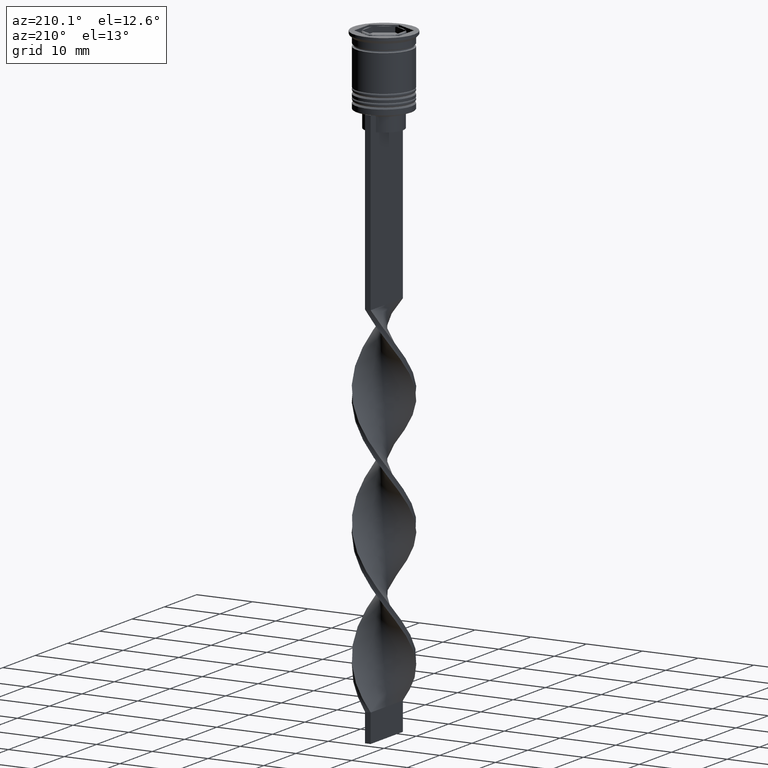
[diagram: clean part render]
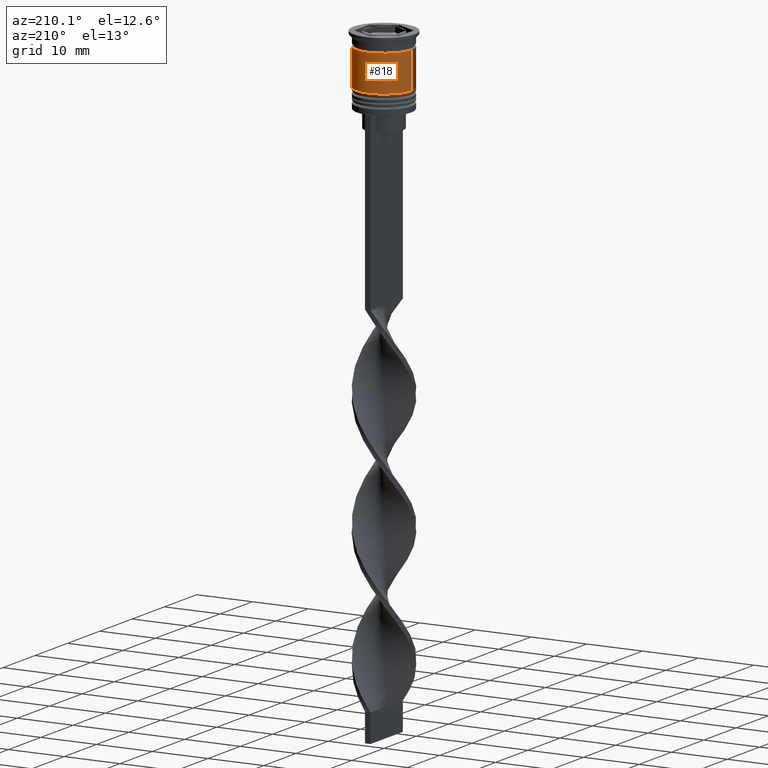
[diagram: same view with one face highlighted and labeled with its STEP entity id]
A machine part, auxiliary view. The second image highlights one B-rep face of the part: STEP entity #818.
In plain terms, the highlighted cylindrical surface (edge-blend (fillet) strip) has radius 5 mm, axis along (-0, -0, 1).
Its self-contained STEP definition (entity closure, byte-faithful):
#49 = DIRECTION ( 'NONE',  ( -0.000000000000000000, -0.000000000000000000, 1.000000000000000000 ) ) ;
#90 = CARTESIAN_POINT ( 'NONE',  ( 5.000000000000000000, 0.000000000000000000, 0.000000000000000000 ) ) ;
#91 = LINE ( 'NONE', #356, #2523 ) ;
#297 = AXIS2_PLACEMENT_3D ( 'NONE', #3252, #49, #680 ) ;
#300 = CIRCLE ( 'NONE', #770, 4.999999999999999112 ) ;
#356 = CARTESIAN_POINT ( 'NONE',  ( -5.000000000000000000, 6.123233995736766282E-16, 0.000000000000000000 ) ) ;
#417 = AXIS2_PLACEMENT_3D ( 'NONE', #3231, #2918, #2957 ) ;
#527 = EDGE_LOOP ( 'NONE', ( #2332, #1537, #2083, #2050 ) ) ;
#655 = DIRECTION ( 'NONE',  ( -0.000000000000000000, -0.000000000000000000, 1.000000000000000000 ) ) ;
#680 = DIRECTION ( 'NONE',  ( 1.000000000000000000, 0.000000000000000000, 0.000000000000000000 ) ) ;
#684 = VERTEX_POINT ( 'NONE', #1416 ) ;
#703 = VERTEX_POINT ( 'NONE', #1125 ) ;
#752 = EDGE_CURVE ( 'NONE', #1600, #684, #2039, .T. ) ;
#770 = AXIS2_PLACEMENT_3D ( 'NONE', #2913, #655, #938 ) ;
#818 = ADVANCED_FACE ( 'NONE', ( #1758 ), #3531, .T. ) ;
#938 = DIRECTION ( 'NONE',  ( 1.000000000000000000, 0.000000000000000000, 0.000000000000000000 ) ) ;
#1046 = CARTESIAN_POINT ( 'NONE',  ( 5.000000000000000888, 0.000000000000000000, -9.000000000000001776 ) ) ;
#1125 = CARTESIAN_POINT ( 'NONE',  ( 4.999999999999999112, 0.000000000000000000, -2.500000000000000000 ) ) ;
#1268 = VECTOR ( 'NONE', #3532, 1000.000000000000000 ) ;
#1353 = EDGE_CURVE ( 'NONE', #703, #2366, #300, .T. ) ;
#1394 = CARTESIAN_POINT ( 'NONE',  ( -4.999999999999999112, 6.123233995736766282E-16, -2.500000000000000000 ) ) ;
#1416 = CARTESIAN_POINT ( 'NONE',  ( -5.000000000000000888, 6.123233995736767268E-16, -9.000000000000001776 ) ) ;
#1537 = ORIENTED_EDGE ( 'NONE', *, *, #2093, .T. ) ;
#1600 = VERTEX_POINT ( 'NONE', #1046 ) ;
#1758 = FACE_OUTER_BOUND ( 'NONE', #527, .T. ) ;
#2039 = CIRCLE ( 'NONE', #417, 5.000000000000000888 ) ;
#2050 = ORIENTED_EDGE ( 'NONE', *, *, #3548, .F. ) ;
#2083 = ORIENTED_EDGE ( 'NONE', *, *, #1353, .F. ) ;
#2093 = EDGE_CURVE ( 'NONE', #684, #2366, #91, .T. ) ;
#2096 = LINE ( 'NONE', #90, #1268 ) ;
#2332 = ORIENTED_EDGE ( 'NONE', *, *, #752, .T. ) ;
#2366 = VERTEX_POINT ( 'NONE', #1394 ) ;
#2523 = VECTOR ( 'NONE', #2691, 1000.000000000000000 ) ;
#2691 = DIRECTION ( 'NONE',  ( -0.000000000000000000, -0.000000000000000000, 1.000000000000000000 ) ) ;
#2913 = CARTESIAN_POINT ( 'NONE',  ( 0.000000000000000000, 0.000000000000000000, -2.500000000000000000 ) ) ;
#2918 = DIRECTION ( 'NONE',  ( -0.000000000000000000, -0.000000000000000000, 1.000000000000000000 ) ) ;
#2957 = DIRECTION ( 'NONE',  ( 1.000000000000000000, 0.000000000000000000, 0.000000000000000000 ) ) ;
#3231 = CARTESIAN_POINT ( 'NONE',  ( 0.000000000000000000, 0.000000000000000000, -9.000000000000001776 ) ) ;
#3252 = CARTESIAN_POINT ( 'NONE',  ( 0.000000000000000000, 0.000000000000000000, 0.000000000000000000 ) ) ;
#3531 = CYLINDRICAL_SURFACE ( 'NONE', #297, 5.000000000000000000 ) ;
#3532 = DIRECTION ( 'NONE',  ( -0.000000000000000000, -0.000000000000000000, 1.000000000000000000 ) ) ;
#3548 = EDGE_CURVE ( 'NONE', #1600, #703, #2096, .T. ) ;